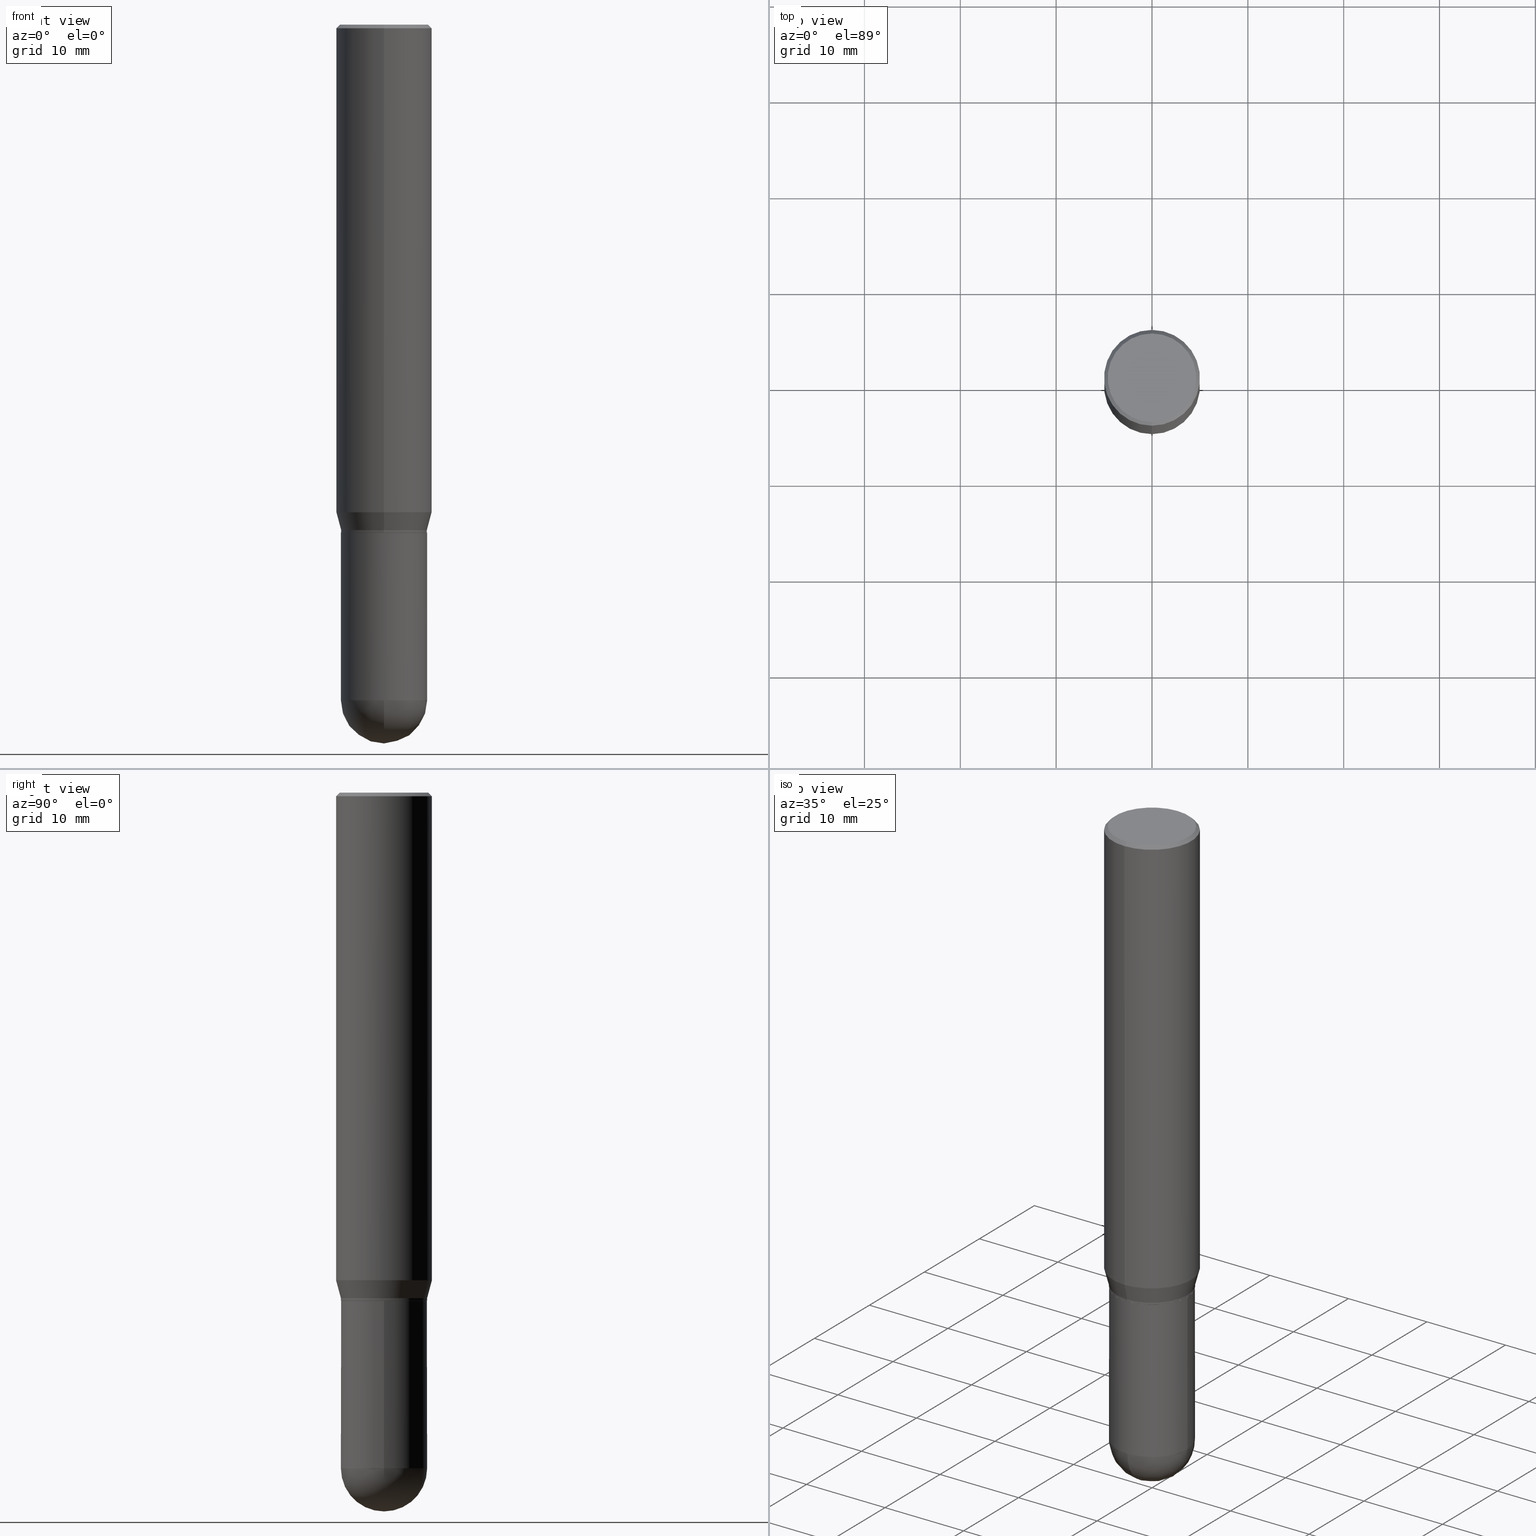
[diagram: canonical four-view strip — front | top / right | iso, engineering-drawing reading convention]
A machine part, canonical four-view strip (front | top / right | iso — engineering-drawing reading convention). The complete STEP part file that produces these views, byte-faithful:
ISO-10303-21;
HEADER;
FILE_DESCRIPTION (( 'STEP AP203' ),
    '1' );
FILE_NAME ('48598.STEP',
    '2024-03-08T13:08:48',
    ( '' ),
    ( '' ),
    'SwSTEP 2.0',
    'SolidWorks 2023',
    '' );
FILE_SCHEMA (( 'CONFIG_CONTROL_DESIGN' ));
ENDSEC;

DATA;
#1 = CARTESIAN_POINT ( 'NONE',  ( 0.000000000000000000, 0.000000000000000000, 0.000000000000000000 ) ) ;
#2 = DIRECTION ( 'NONE',  ( -6.982962677686265133E-15, -1.000000000000000000, 3.092949893760839854E-15 ) ) ;
#3 = CARTESIAN_POINT ( 'NONE',  ( 1.374596203102542003E-15, 0.1968499999999999417, -0.01500000000000151733 ) ) ;
#4 = LOCAL_TIME ( 8, 8, 48.00000000000000000, #450 ) ;
#5 = CARTESIAN_POINT ( 'NONE',  ( 6.813022828238686978E-29, -9.654960234947156736E-15, -2.775649999999999729 ) ) ;
#6 = DIRECTION ( 'NONE',  ( -6.982962677686265133E-15, -1.000000000000000000, 3.491137977679279424E-15 ) ) ;
#7 = ORIENTED_EDGE ( 'NONE', *, *, #134, .F. ) ;
#8 = FACE_OUTER_BOUND ( 'NONE', #474, .T. ) ;
#9 = VECTOR ( 'NONE', #320, 39.37007874015748854 ) ;
#10 = DATE_AND_TIME ( #129, #147 ) ;
#11 = APPROVAL ( #410, 'UNSPECIFIED' ) ;
#12 = AXIS2_PLACEMENT_3D ( 'NONE', #148, #66, #234 ) ;
#13 = ORIENTED_EDGE ( 'NONE', *, *, #47, .F. ) ;
#14 = PERSON_AND_ORGANIZATION_ROLE ( 'creator' ) ;
#15 = CARTESIAN_POINT ( 'NONE',  ( 1.328714915871437240E-15, 0.1771499999999927855, -2.076700000000000657 ) ) ;
#16 = ADVANCED_FACE ( 'NONE', ( #486 ), #204, .T. ) ;
#17 = PERSON_AND_ORGANIZATION ( #488, #88 ) ;
#18 = FACE_OUTER_BOUND ( 'NONE', #364, .T. ) ;
#19 = APPROVAL_DATE_TIME ( #217, #283 ) ;
#20 = CONICAL_SURFACE ( 'NONE', #412, 0.1771500000000000019, 0.2617993877991499074 ) ;
#21 = CONICAL_SURFACE ( 'NONE', #315, 0.1766500000000000847, 0.7853981633974824739 ) ;
#22 = ORIENTED_EDGE ( 'NONE', *, *, #201, .T. ) ;
#23 = VERTEX_POINT ( 'NONE', #445 ) ;
#24 = DIRECTION ( 'NONE',  ( -2.446062689571483486E-29, 3.490630864032153582E-15, 1.000000000000000000 ) ) ;
#25 = ORIENTED_EDGE ( 'NONE', *, *, #456, .T. ) ;
#26 = CIRCLE ( 'NONE', #118, 0.1968499999999999694 ) ;
#27 = DIRECTION ( 'NONE',  ( -2.445468806185136597E-29, 3.491481338843145583E-15, 1.000000000000000000 ) ) ;
#28 = CARTESIAN_POINT ( 'NONE',  ( 2.030115060229500884E-44, -2.897056693185172235E-30, -8.299521794288719114E-16 ) ) ;
#29 = CARTESIAN_POINT ( 'NONE',  ( 1.237031838352190236E-15, 0.1771499999999903430, -2.775650000000000173 ) ) ;
#30 = LINE ( 'NONE', #348, #247 ) ;
#31 = CC_DESIGN_PERSON_AND_ORGANIZATION_ASSIGNMENT ( #297, #14, ( #374 ) ) ;
#32 = DIRECTION ( 'NONE',  ( -2.446062689571483486E-29, 3.490630864032153582E-15, 1.000000000000000000 ) ) ;
#33 = CARTESIAN_POINT ( 'NONE',  ( 6.787765491887772680E-29, -9.691130178159974964E-15, -2.775649999999999729 ) ) ;
#34 = CARTESIAN_POINT ( 'NONE',  ( 1.398703375343805514E-15, 0.1968499999999929750, -2.003178599090894352 ) ) ;
#35 = LINE ( 'NONE', #349, #156 ) ;
#36 = ORIENTED_EDGE ( 'NONE', *, *, #328, .F. ) ;
#37 = CARTESIAN_POINT ( 'NONE',  ( 2.030115060229500884E-44, -2.897056693185172235E-30, -8.299521794288719114E-16 ) ) ;
#38 = EDGE_CURVE ( 'NONE', #58, #492, #188, .T. ) ;
#39 = CARTESIAN_POINT ( 'NONE',  ( 7.253812262660790316E-29, -1.026262884509977305E-14, -2.952799999999999869 ) ) ;
#40 = CC_DESIGN_DATE_AND_TIME_ASSIGNMENT ( #409, #379, ( #374 ) ) ;
#41 = ORIENTED_EDGE ( 'NONE', *, *, #115, .T. ) ;
#42 = VERTEX_POINT ( 'NONE', #393 ) ;
#43 = FACE_OUTER_BOUND ( 'NONE', #191, .T. ) ;
#44 = DIRECTION ( 'NONE',  ( -2.445468806185136877E-29, 3.491481338843145188E-15, 1.000000000000000000 ) ) ;
#45 = VECTOR ( 'NONE', #202, 39.37007874015748143 ) ;
#46 = CARTESIAN_POINT ( 'NONE',  ( 0.000000000000000000, 0.000000000000000000, 0.000000000000000000 ) ) ;
#47 = EDGE_CURVE ( 'NONE', #499, #91, #286, .T. ) ;
#48 = VERTEX_POINT ( 'NONE', #351 ) ;
#49 = ORIENTED_EDGE ( 'NONE', *, *, #401, .T. ) ;
#50 = CARTESIAN_POINT ( 'NONE',  ( 1.269851762937247450E-15, 0.1818500000000000116, -1.049747312338683111E-15 ) ) ;
#51 = AXIS2_PLACEMENT_3D ( 'NONE', #174, #416, #132 ) ;
#52 = CALENDAR_DATE ( 2024, 8, 3 ) ;
#53 = EDGE_CURVE ( 'NONE', #195, #58, #356, .T. ) ;
#54 = CIRCLE ( 'NONE', #199, 0.1771500000000000019 ) ;
#55 = CARTESIAN_POINT ( 'NONE',  ( 0.000000000000000000, 0.000000000000000000, 0.000000000000000000 ) ) ;
#56 = APPROVAL_ROLE ( '' ) ;
#57 = CIRCLE ( 'NONE', #509, 0.1771500000000000019 ) ;
#58 = VERTEX_POINT ( 'NONE', #159 ) ;
#59 = EDGE_CURVE ( 'NONE', #494, #48, #79, .T. ) ;
#60 = ORIENTED_EDGE ( 'NONE', *, *, #38, .F. ) ;
#61 = ORIENTED_EDGE ( 'NONE', *, *, #81, .F. ) ;
#62 = DIRECTION ( 'NONE',  ( -6.982962677686265922E-15, -1.000000000000000000, 3.084220145260246224E-15 ) ) ;
#63 = CARTESIAN_POINT ( 'NONE',  ( 3.669094034357428610E-31, -5.235946296048520279E-17, -0.01500000000000083038 ) ) ;
#64 = FACE_OUTER_BOUND ( 'NONE', #246, .T. ) ;
#65 = EDGE_LOOP ( 'NONE', ( #13, #457, #184, #259 ) ) ;
#66 = DIRECTION ( 'NONE',  ( -2.446062689571483206E-29, 3.490630864032153582E-15, 1.000000000000000000 ) ) ;
#67 = ORIENTED_EDGE ( 'NONE', *, *, #305, .T. ) ;
#68 = DIRECTION ( 'NONE',  ( 2.438088387897960049E-29, -3.491481338843145188E-15, -1.000000000000000000 ) ) ;
#69 = DIRECTION ( 'NONE',  ( 1.000000000000000000, -6.982962677686266711E-15, 4.876176775795934672E-29 ) ) ;
#70 = ORIENTED_EDGE ( 'NONE', *, *, #345, .F. ) ;
#71 = DIRECTION ( 'NONE',  ( -6.982962677686265922E-15, -1.000000000000000000, 3.490630864032153582E-15 ) ) ;
#72 = AXIS2_PLACEMENT_3D ( 'NONE', #424, #144, #62 ) ;
#73 = PRODUCT_DEFINITION_FORMATION_WITH_SPECIFIED_SOURCE ( 'ANY', '', #155, .NOT_KNOWN. ) ;
#74 = DIMENSIONAL_EXPONENTS ( 1.000000000000000000, 0.000000000000000000, 0.000000000000000000, 0.000000000000000000, 0.000000000000000000, 0.000000000000000000, 0.000000000000000000 ) ;
#75 = DIRECTION ( 'NONE',  ( 6.982962677686265133E-15, 1.000000000000000000, -3.084220145260245435E-15 ) ) ;
#76 = DIRECTION ( 'NONE',  ( -6.982962677686265133E-15, -1.000000000000000000, 3.092949893760839854E-15 ) ) ;
#77 = AXIS2_PLACEMENT_3D ( 'NONE', #426, #307, #265 ) ;
#78 = CARTESIAN_POINT ( 'NONE',  ( 5.102959757866523939E-29, -7.285674109763990928E-15, -2.086699999999999999 ) ) ;
#79 = LINE ( 'NONE', #3, #149 ) ;
#80 = ORIENTED_EDGE ( 'NONE', *, *, #471, .T. ) ;
#81 = EDGE_CURVE ( 'NONE', #192, #492, #154, .T. ) ;
#82 = ORIENTED_EDGE ( 'NONE', *, *, #81, .T. ) ;
#83 = EDGE_LOOP ( 'NONE', ( #25, #108, #92, #182 ) ) ;
#84 = LOCAL_TIME ( 8, 8, 48.00000000000000000, #414 ) ;
#85 = AXIS2_PLACEMENT_3D ( 'NONE', #353, #387, #319 ) ;
#86 = CARTESIAN_POINT ( 'NONE',  ( 0.000000000000000000, 0.000000000000000000, 0.000000000000000000 ) ) ;
#87 = COORDINATED_UNIVERSAL_TIME_OFFSET ( 5, 0, .BEHIND. ) ;
#88 = ORGANIZATION ( 'UNSPECIFIED', 'UNSPECIFIED', '' ) ;
#89 = LENGTH_MEASURE_WITH_UNIT ( LENGTH_MEASURE( 0.02539999999999999897 ), #122 );
#90 = CARTESIAN_POINT ( 'NONE',  ( 0.000000000000000000, 0.000000000000000000, 0.000000000000000000 ) ) ;
#91 = VERTEX_POINT ( 'NONE', #15 ) ;
#92 = ORIENTED_EDGE ( 'NONE', *, *, #100, .F. ) ;
#93 = PERSON_AND_ORGANIZATION ( #488, #88 ) ;
#94 = APPROVAL_ROLE ( '' ) ;
#95 = ADVANCED_FACE ( 'NONE', ( #18 ), #173, .T. ) ;
#96 = VECTOR ( 'NONE', #245, 39.37007874015748143 ) ;
#97 = AXIS2_PLACEMENT_3D ( 'NONE', #50, #298, #451 ) ;
#98 = CARTESIAN_POINT ( 'NONE',  ( 0.1771500000000000574, -9.725433982314104551E-15, -2.775649999999999729 ) ) ;
#99 = ORIENTED_EDGE ( 'NONE', *, *, #249, .T. ) ;
#100 = EDGE_CURVE ( 'NONE', #111, #48, #372, .T. ) ;
#101 = CARTESIAN_POINT ( 'NONE',  ( 1.322223983019894726E-15, 0.1818500000000000116, -1.464723402053119215E-15 ) ) ;
#102 = CARTESIAN_POINT ( 'NONE',  ( 5.104199014328814533E-29, -7.283899423975895246E-15, -2.086699999999999999 ) ) ;
#103 = CARTESIAN_POINT ( 'NONE',  ( 5.102975982984029153E-29, -7.282154108543879777E-15, -2.086199999999999832 ) ) ;
#104 = ORIENTED_EDGE ( 'NONE', *, *, #233, .F. ) ;
#105 = LOCAL_TIME ( 8, 8, 48.00000000000000000, #87 ) ;
#106 = CARTESIAN_POINT ( 'NONE',  ( 4.899900431784307607E-29, -6.992357044155365474E-15, -2.003178599090893464 ) ) ;
#107 = FACE_OUTER_BOUND ( 'NONE', #487, .T. ) ;
#108 = ORIENTED_EDGE ( 'NONE', *, *, #214, .T. ) ;
#109 = EDGE_LOOP ( 'NONE', ( #7, #67, #289, #288 ) ) ;
#110 = CARTESIAN_POINT ( 'NONE',  ( 6.787765491887772680E-29, -9.691130178159974964E-15, -2.775649999999999729 ) ) ;
#111 = VERTEX_POINT ( 'NONE', #301 ) ;
#112 = ORIENTED_EDGE ( 'NONE', *, *, #305, .F. ) ;
#113 = CARTESIAN_POINT ( 'NONE',  ( 5.079738387433100219E-29, -7.248993115335574834E-15, -2.076700000000000212 ) ) ;
#114 = CARTESIAN_POINT ( 'NONE',  ( 6.813022828238686978E-29, -9.654960234947156736E-15, -2.775649999999999729 ) ) ;
#115 = EDGE_CURVE ( 'NONE', #318, #284, #342, .T. ) ;
#116 = LINE ( 'NONE', #278, #96 ) ;
#117 = DIRECTION ( 'NONE',  ( -6.982962677686265922E-15, -1.000000000000000000, 3.084220145260246224E-15 ) ) ;
#118 = AXIS2_PLACEMENT_3D ( 'NONE', #415, #388, #358 ) ;
#119 = PRODUCT_RELATED_PRODUCT_CATEGORY ( 'detail', '', ( #155 ) ) ;
#120 = CC_DESIGN_APPROVAL ( #459, ( #73 ) ) ;
#121 = ORIENTED_EDGE ( 'NONE', *, *, #203, .F. ) ;
#122 =( LENGTH_UNIT ( ) NAMED_UNIT ( * ) SI_UNIT ( $, .METRE. ) );
#123 = ADVANCED_FACE ( 'NONE', ( #330 ), #453, .T. ) ;
#124 = ORIENTED_EDGE ( 'NONE', *, *, #485, .F. ) ;
#125 = CC_DESIGN_PERSON_AND_ORGANIZATION_ASSIGNMENT ( #126, #334, ( #155 ) ) ;
#126 = PERSON_AND_ORGANIZATION ( #488, #88 ) ;
#127 = AXIS2_PLACEMENT_3D ( 'NONE', #432, #68, #321 ) ;
#128 = ADVANCED_FACE ( 'NONE', ( #468 ), #472, .F. ) ;
#129 = CALENDAR_DATE ( 2024, 8, 3 ) ;
#130 = CONICAL_SURFACE ( 'NONE', #229, 0.1766500000000000847, 0.7853981633974824739 ) ;
#131 = APPROVAL_DATE_TIME ( #294, #459 ) ;
#132 = DIRECTION ( 'NONE',  ( 6.982962677686265133E-15, 1.000000000000000000, -3.491137977679279424E-15 ) ) ;
#133 = COORDINATED_UNIVERSAL_TIME_OFFSET ( 5, 0, .BEHIND. ) ;
#134 = EDGE_CURVE ( 'NONE', #465, #494, #489, .T. ) ;
#135 = ORIENTED_EDGE ( 'NONE', *, *, #471, .F. ) ;
#136 = VERTEX_POINT ( 'NONE', #189 ) ;
#137 = AXIS2_PLACEMENT_3D ( 'NONE', #114, #440, #277 ) ;
#138 = AXIS2_PLACEMENT_3D ( 'NONE', #5, #177, #167 ) ;
#139 = ORIENTED_EDGE ( 'NONE', *, *, #333, .F. ) ;
#140 = CARTESIAN_POINT ( 'NONE',  ( -0.1771500000000000852, -7.229675687562965256E-15, -2.086699999999999999 ) ) ;
#141 = DIRECTION ( 'NONE',  ( -6.982962677686265922E-15, -1.000000000000000000, 3.084220145260246224E-15 ) ) ;
#142 = ORIENTED_EDGE ( 'NONE', *, *, #134, .T. ) ;
#143 = DIRECTION ( 'NONE',  ( -6.982962677686265922E-15, -1.000000000000000000, 3.084220145260246224E-15 ) ) ;
#144 = DIRECTION ( 'NONE',  ( -2.446062689571483486E-29, 3.490630864032153582E-15, 1.000000000000000000 ) ) ;
#145 = DIRECTION ( 'NONE',  ( -6.982962677686265133E-15, -1.000000000000000000, 3.491137977679279424E-15 ) ) ;
#146 = CYLINDRICAL_SURFACE ( 'NONE', #262, 0.1771500000000000019 ) ;
#147 = LOCAL_TIME ( 8, 8, 48.00000000000000000, #133 ) ;
#148 = CARTESIAN_POINT ( 'NONE',  ( 5.104199014328814533E-29, -7.283899423975895246E-15, -2.086699999999999999 ) ) ;
#149 = VECTOR ( 'NONE', #243, 39.37007874015748143 ) ;
#150 = DIRECTION ( 'NONE',  ( 5.024295867788231995E-15, 0.7071067811865739960, 0.7071067811865208164 ) ) ;
#151 = DIRECTION ( 'NONE',  ( -2.446062689571483486E-29, 3.490630864032153582E-15, 1.000000000000000000 ) ) ;
#152 = DIRECTION ( 'NONE',  ( -2.446062689571483486E-29, 3.490630864032153582E-15, 1.000000000000000000 ) ) ;
#153 = DIRECTION ( 'NONE',  ( -6.982962677686265922E-15, -1.000000000000000000, 3.490630864032153582E-15 ) ) ;
#154 = LINE ( 'NONE', #400, #309 ) ;
#155 = PRODUCT ( '48598', '48598', '', ( #458 ) ) ;
#156 = VECTOR ( 'NONE', #198, 39.37007874015748854 ) ;
#157 = LINE ( 'NONE', #478, #9 ) ;
#158 = ADVANCED_FACE ( 'NONE', ( #236 ), #382, .T. ) ;
#159 = CARTESIAN_POINT ( 'NONE',  ( 0.1771500000000000852, -8.522705948116114900E-15, -2.086699999999999999 ) ) ;
#160 = FACE_OUTER_BOUND ( 'NONE', #109, .T. ) ;
#161 = DIRECTION ( 'NONE',  ( 1.000000000000000000, -6.982962677686269077E-15, 0.000000000000000000 ) ) ;
#162 = EDGE_CURVE ( 'NONE', #136, #499, #389, .T. ) ;
#163 = APPLICATION_CONTEXT ( 'configuration controlled 3d designs of mechanical parts and assemblies' ) ;
#164 = ADVANCED_BREP_SHAPE_REPRESENTATION ( '48598', ( #224, #398, #338 ), #221 ) ;
#165 = DIRECTION ( 'NONE',  ( -2.446062689571483486E-29, 3.490630864032153582E-15, 1.000000000000000000 ) ) ;
#166 = SPHERICAL_SURFACE ( 'NONE', #369, 0.1771500000000000574 ) ;
#167 = DIRECTION ( 'NONE',  ( 6.982962677686264344E-15, 1.000000000000000000, 0.000000000000000000 ) ) ;
#168 = AXIS2_PLACEMENT_3D ( 'NONE', #37, #152, #477 ) ;
#169 = CLOSED_SHELL ( 'NONE', ( #322, #418, #384, #220, #158, #449, #123, #340, #461, #444, #241, #16 ) ) ;
#170 = PERSON_AND_ORGANIZATION ( #488, #88 ) ;
#171 = ORIENTED_EDGE ( 'NONE', *, *, #185, .F. ) ;
#172 =( NAMED_UNIT ( * ) PLANE_ANGLE_UNIT ( ) SI_UNIT ( $, .RADIAN. ) );
#173 = CYLINDRICAL_SURFACE ( 'NONE', #190, 0.1771500000000000574 ) ;
#174 = CARTESIAN_POINT ( 'NONE',  ( 3.669094034357428610E-31, -5.235946296048520279E-17, -0.01500000000000083038 ) ) ;
#175 = APPROVAL_ROLE ( '' ) ;
#176 = DIRECTION ( 'NONE',  ( -2.446062689571483486E-29, 3.490630864032153582E-15, 1.000000000000000000 ) ) ;
#177 = DIRECTION ( 'NONE',  ( 1.000000000000000000, -6.982962677686265922E-15, 4.883557194083112340E-29 ) ) ;
#178 = APPROVAL_STATUS ( 'not_yet_approved' ) ;
#179 = PRODUCT_DEFINITION_SHAPE ( 'NONE', 'NONE',  #374 ) ;
#180 = VECTOR ( 'NONE', #150, 39.37007874015748854 ) ;
#181 = VERTEX_POINT ( 'NONE', #34 ) ;
#182 = ORIENTED_EDGE ( 'NONE', *, *, #381, .F. ) ;
#183 =( NAMED_UNIT ( * ) SI_UNIT ( $, .STERADIAN. ) SOLID_ANGLE_UNIT ( ) );
#184 = ORIENTED_EDGE ( 'NONE', *, *, #185, .T. ) ;
#185 = EDGE_CURVE ( 'NONE', #481, #226, #344, .T. ) ;
#186 = APPROVAL_PERSON_ORGANIZATION ( #170, #459, #94 ) ;
#187 = DIRECTION ( 'NONE',  ( 1.000000000000000000, -6.982962677686270655E-15, 0.000000000000000000 ) ) ;
#188 = CIRCLE ( 'NONE', #484, 0.1771500000000000852 ) ;
#189 = CARTESIAN_POINT ( 'NONE',  ( 1.256950099559668320E-15, 0.1766499999999928128, -2.086700000000000443 ) ) ;
#190 = AXIS2_PLACEMENT_3D ( 'NONE', #86, #335, #290 ) ;
#191 = EDGE_LOOP ( 'NONE', ( #22, #227, #139, #341 ) ) ;
#192 = VERTEX_POINT ( 'NONE', #310 ) ;
#193 = DIRECTION ( 'NONE',  ( -6.982962677686265133E-15, -1.000000000000000000, 3.092949893760839854E-15 ) ) ;
#194 = EDGE_CURVE ( 'NONE', #23, #195, #215, .T. ) ;
#195 = VERTEX_POINT ( 'NONE', #98 ) ;
#196 = DIRECTION ( 'NONE',  ( -2.446062689571483486E-29, 3.490630864032153582E-15, 1.000000000000000000 ) ) ;
#197 = DIRECTION ( 'NONE',  ( -2.446062689571483486E-29, 3.490630864032153582E-15, 1.000000000000000000 ) ) ;
#198 = DIRECTION ( 'NONE',  ( -4.937700262164715281E-15, -0.7071067811865691111, 0.7071067811865257013 ) ) ;
#199 = AXIS2_PLACEMENT_3D ( 'NONE', #476, #235, #117 ) ;
#200 = SPHERICAL_SURFACE ( 'NONE', #447, 0.1771500000000000574 ) ;
#201 = EDGE_CURVE ( 'NONE', #42, #136, #438, .T. ) ;
#202 = DIRECTION ( 'NONE',  ( -2.445468806185136877E-29, 3.491481338843145188E-15, 1.000000000000000000 ) ) ;
#203 = EDGE_CURVE ( 'NONE', #181, #208, #422, .T. ) ;
#204 = CYLINDRICAL_SURFACE ( 'NONE', #268, 0.1771500000000000019 ) ;
#205 = CYLINDRICAL_SURFACE ( 'NONE', #497, 0.1968499999999999694 ) ;
#206 = CIRCLE ( 'NONE', #168, 0.1818500000000000116 ) ;
#207 = VECTOR ( 'NONE', #196, 39.37007874015748143 ) ;
#208 = VERTEX_POINT ( 'NONE', #431 ) ;
#209 = DIRECTION ( 'NONE',  ( -2.445468806185136597E-29, 3.491481338843145583E-15, 1.000000000000000000 ) ) ;
#210 = EDGE_LOOP ( 'NONE', ( #391, #41, #430, #252 ) ) ;
#211 = ORIENTED_EDGE ( 'NONE', *, *, #401, .F. ) ;
#212 = DIRECTION ( 'NONE',  ( -1.000000000000000000, 6.982962677686265133E-15, -4.883557194083112340E-29 ) ) ;
#213 = FACE_OUTER_BOUND ( 'NONE', #306, .T. ) ;
#214 = EDGE_CURVE ( 'NONE', #181, #48, #30, .T. ) ;
#215 = CIRCLE ( 'NONE', #85, 0.1771500000000000574 ) ;
#216 = EDGE_LOOP ( 'NONE', ( #421, #82, #60, #317, #375 ) ) ;
#217 = DATE_AND_TIME ( #455, #4 ) ;
#218 = AXIS2_PLACEMENT_3D ( 'NONE', #113, #507, #143 ) ;
#219 = CALENDAR_DATE ( 2024, 8, 3 ) ;
#220 = ADVANCED_FACE ( 'NONE', ( #244 ), #205, .T. ) ;
#221 =( GEOMETRIC_REPRESENTATION_CONTEXT ( 3 ) GLOBAL_UNCERTAINTY_ASSIGNED_CONTEXT ( ( #506 ) ) GLOBAL_UNIT_ASSIGNED_CONTEXT ( ( #373, #172, #183 ) ) REPRESENTATION_CONTEXT ( 'NONE', 'WORKASPACE' ) );
#222 = APPLICATION_PROTOCOL_DEFINITION ( 'international standard', 'config_control_design', 1994, #163 ) ;
#223 = VECTOR ( 'NONE', #396, 39.37007874015748143 ) ;
#224 = MANIFOLD_SOLID_BREP ( 'Body-Move/Copy2[1]', #429 ) ;
#225 = SHAPE_DEFINITION_REPRESENTATION ( #179, #164 ) ;
#226 = VERTEX_POINT ( 'NONE', #327 ) ;
#227 = ORIENTED_EDGE ( 'NONE', *, *, #162, .T. ) ;
#228 = CARTESIAN_POINT ( 'NONE',  ( 1.255173742720268265E-15, 0.1766499999999928128, -2.086700000000000443 ) ) ;
#229 = AXIS2_PLACEMENT_3D ( 'NONE', #326, #32, #76 ) ;
#230 = CARTESIAN_POINT ( 'NONE',  ( 1.258726456399067783E-15, 0.1771499999999926744, -2.086200000000000720 ) ) ;
#231 = ORIENTED_EDGE ( 'NONE', *, *, #38, .T. ) ;
#232 = FACE_OUTER_BOUND ( 'NONE', #363, .T. ) ;
#233 = EDGE_CURVE ( 'NONE', #499, #481, #394, .T. ) ;
#234 = DIRECTION ( 'NONE',  ( -6.982962677686265922E-15, -1.000000000000000000, 3.490630864032153582E-15 ) ) ;
#235 = DIRECTION ( 'NONE',  ( -2.446062689571483486E-29, 3.490630864032153582E-15, 1.000000000000000000 ) ) ;
#236 = FACE_OUTER_BOUND ( 'NONE', #276, .T. ) ;
#237 = ORIENTED_EDGE ( 'NONE', *, *, #203, .T. ) ;
#238 = CARTESIAN_POINT ( 'NONE',  ( 5.104199014328814533E-29, -7.283899423975895246E-15, -2.086699999999999999 ) ) ;
#239 = AXIS2_PLACEMENT_3D ( 'NONE', #357, #27, #502 ) ;
#240 = CARTESIAN_POINT ( 'NONE',  ( 6.813022828238686978E-29, -9.654960234947156736E-15, -2.775649999999999729 ) ) ;
#241 = ADVANCED_FACE ( 'NONE', ( #64 ), #21, .T. ) ;
#242 = ORIENTED_EDGE ( 'NONE', *, *, #456, .F. ) ;
#243 = DIRECTION ( 'NONE',  ( 4.937700262164548831E-15, 0.7071067811865452413, -0.7071067811865497932 ) ) ;
#244 = FACE_OUTER_BOUND ( 'NONE', #83, .T. ) ;
#245 = DIRECTION ( 'NONE',  ( -2.446062689571483486E-29, 3.490630864032153582E-15, 1.000000000000000000 ) ) ;
#246 = EDGE_LOOP ( 'NONE', ( #405, #49, #365, #104 ) ) ;
#247 = VECTOR ( 'NONE', #325, 39.37007874015748143 ) ;
#248 = CARTESIAN_POINT ( 'NONE',  ( 3.669094034357428610E-31, -5.235946296048520279E-17, -0.01500000000000083038 ) ) ;
#249 = EDGE_CURVE ( 'NONE', #91, #226, #54, .T. ) ;
#250 = DIRECTION ( 'NONE',  ( -2.446062689571483486E-29, 3.490630864032153582E-15, 1.000000000000000000 ) ) ;
#251 = DIRECTION ( 'NONE',  ( 1.000000000000000000, -6.982962677686270655E-15, 0.000000000000000000 ) ) ;
#252 = ORIENTED_EDGE ( 'NONE', *, *, #194, .F. ) ;
#253 = DATE_TIME_ROLE ( 'classification_date' ) ;
#254 = CIRCLE ( 'NONE', #380, 0.1771500000000000574 ) ;
#255 = DIRECTION ( 'NONE',  ( 1.000000000000000000, 0.000000000000000000, 0.000000000000000000 ) ) ;
#256 = ADVANCED_FACE ( 'NONE', ( #428 ), #200, .T. ) ;
#257 = DIRECTION ( 'NONE',  ( -2.446062689571483486E-29, 3.490630864032153582E-15, 1.000000000000000000 ) ) ;
#258 = DATE_AND_TIME ( #303, #469 ) ;
#259 = ORIENTED_EDGE ( 'NONE', *, *, #249, .F. ) ;
#260 = APPROVAL_DATE_TIME ( #258, #11 ) ;
#261 = CIRCLE ( 'NONE', #500, 0.1968500000000000250 ) ;
#262 = AXIS2_PLACEMENT_3D ( 'NONE', #466, #151, #272 ) ;
#263 = EDGE_CURVE ( 'NONE', #226, #208, #316, .T. ) ;
#264 = DIRECTION ( 'NONE',  ( -2.446062689571483486E-29, 3.490630864032153582E-15, 1.000000000000000000 ) ) ;
#265 = DIRECTION ( 'NONE',  ( 6.982962677686265133E-15, 1.000000000000000000, -3.491137977679279424E-15 ) ) ;
#266 = DIRECTION ( 'NONE',  ( -2.446062689571483486E-29, 3.490630864032153582E-15, 1.000000000000000000 ) ) ;
#267 = EDGE_LOOP ( 'NONE', ( #231, #80 ) ) ;
#268 = AXIS2_PLACEMENT_3D ( 'NONE', #442, #434, #71 ) ;
#269 = DIRECTION ( 'NONE',  ( -2.446062689571483486E-29, 3.490630864032153582E-15, 1.000000000000000000 ) ) ;
#270 = PLANE ( 'NONE',  #12 ) ;
#271 = FACE_OUTER_BOUND ( 'NONE', #216, .T. ) ;
#272 = DIRECTION ( 'NONE',  ( -6.982962677686265922E-15, -1.000000000000000000, 3.490630864032153582E-15 ) ) ;
#273 = CC_DESIGN_PERSON_AND_ORGANIZATION_ASSIGNMENT ( #495, #493, ( #73 ) ) ;
#274 = CARTESIAN_POINT ( 'NONE',  ( 1.258726456399017296E-15, 0.1771500000000000019, -6.183652575632960237E-16 ) ) ;
#275 = DIRECTION ( 'NONE',  ( -2.445468806185136597E-29, 3.491481338843145583E-15, 1.000000000000000000 ) ) ;
#276 = EDGE_LOOP ( 'NONE', ( #308, #483, #242, #378 ) ) ;
#277 = DIRECTION ( 'NONE',  ( -7.105427357600999492E-15, -1.000000000000000000, 0.000000000000000000 ) ) ;
#278 = CARTESIAN_POINT ( 'NONE',  ( -1.374596203102541214E-15, -0.1968499999999999694, 6.871306855847293015E-16 ) ) ;
#279 = ORIENTED_EDGE ( 'NONE', *, *, #47, .T. ) ;
#280 = CIRCLE ( 'NONE', #239, 0.1771500000000000574 ) ;
#281 = CIRCLE ( 'NONE', #498, 0.1771500000000000852 ) ;
#282 = AXIS2_PLACEMENT_3D ( 'NONE', #106, #269, #346 ) ;
#283 = APPROVAL ( #383, 'UNSPECIFIED' ) ;
#284 = VERTEX_POINT ( 'NONE', #29 ) ;
#285 = ORIENTED_EDGE ( 'NONE', *, *, #403, .F. ) ;
#286 = LINE ( 'NONE', #274, #207 ) ;
#287 = ORIENTED_EDGE ( 'NONE', *, *, #59, .T. ) ;
#288 = ORIENTED_EDGE ( 'NONE', *, *, #59, .F. ) ;
#289 = ORIENTED_EDGE ( 'NONE', *, *, #100, .T. ) ;
#290 = DIRECTION ( 'NONE',  ( 1.000000000000000000, -6.982962677686266711E-15, 4.876176775795934672E-29 ) ) ;
#291 = EDGE_CURVE ( 'NONE', #226, #91, #331, .T. ) ;
#292 = CC_DESIGN_APPROVAL ( #283, ( #374 ) ) ;
#293 = AXIS2_PLACEMENT_3D ( 'NONE', #1, #275, #69 ) ;
#294 = DATE_AND_TIME ( #52, #105 ) ;
#295 = PLANE ( 'NONE',  #97 ) ;
#296 = ORIENTED_EDGE ( 'NONE', *, *, #115, .F. ) ;
#297 = PERSON_AND_ORGANIZATION ( #488, #88 ) ;
#298 = DIRECTION ( 'NONE',  ( 2.446062689571483206E-29, -3.490630864032153582E-15, -1.000000000000000000 ) ) ;
#299 = ORIENTED_EDGE ( 'NONE', *, *, #53, .T. ) ;
#300 = COORDINATED_UNIVERSAL_TIME_OFFSET ( 5, 0, .BEHIND. ) ;
#301 = CARTESIAN_POINT ( 'NONE',  ( -1.374596203102541017E-15, -0.1968500000000000805, -0.01500000000000014343 ) ) ;
#302 = ORIENTED_EDGE ( 'NONE', *, *, #291, .F. ) ;
#303 = CALENDAR_DATE ( 2024, 8, 3 ) ;
#304 = PERSON_AND_ORGANIZATION_ROLE ( 'classification_officer' ) ;
#305 = EDGE_CURVE ( 'NONE', #465, #111, #354, .T. ) ;
#306 = EDGE_LOOP ( 'NONE', ( #337, #142 ) ) ;
#307 = DIRECTION ( 'NONE',  ( 2.446062689571483486E-29, -3.490630864032153582E-15, -1.000000000000000000 ) ) ;
#308 = ORIENTED_EDGE ( 'NONE', *, *, #291, .T. ) ;
#309 = VECTOR ( 'NONE', #44, 39.37007874015748143 ) ;
#310 = CARTESIAN_POINT ( 'NONE',  ( -0.1771500000000000574, -7.229675687562965256E-15, -2.775649999999999729 ) ) ;
#311 = FACE_OUTER_BOUND ( 'NONE', #371, .T. ) ;
#312 = DIRECTION ( 'NONE',  ( -4.851104656540965064E-15, -0.7071067811865501263, -0.7071067811865449082 ) ) ;
#313 = CARTESIAN_POINT ( 'NONE',  ( -1.237031838352121999E-15, -0.1771500000000000019, 6.183652575632960237E-16 ) ) ;
#314 = DESIGN_CONTEXT ( 'detailed design', #443, 'design' ) ;
#315 = AXIS2_PLACEMENT_3D ( 'NONE', #238, #266, #439 ) ;
#316 = LINE ( 'NONE', #503, #223 ) ;
#317 = ORIENTED_EDGE ( 'NONE', *, *, #53, .F. ) ;
#318 = VERTEX_POINT ( 'NONE', #39 ) ;
#319 = DIRECTION ( 'NONE',  ( 1.000000000000000000, -6.982962677686270655E-15, 0.000000000000000000 ) ) ;
#320 = DIRECTION ( 'NONE',  ( 1.839019923739597554E-15, 0.2588190451025245697, 0.9659258262890670910 ) ) ;
#321 = DIRECTION ( 'NONE',  ( -1.000000000000000000, 6.982962677686265922E-15, -4.876176775795935793E-29 ) ) ;
#322 = ADVANCED_FACE ( 'NONE', ( #232 ), #146, .T. ) ;
#323 = ORIENTED_EDGE ( 'NONE', *, *, #201, .F. ) ;
#324 = CIRCLE ( 'NONE', #411, 0.1771500000000000574 ) ;
#325 = DIRECTION ( 'NONE',  ( -2.446062689571483486E-29, 3.490630864032153582E-15, 1.000000000000000000 ) ) ;
#326 = CARTESIAN_POINT ( 'NONE',  ( 5.104199014328814533E-29, -7.283899423975895246E-15, -2.086699999999999999 ) ) ;
#327 = CARTESIAN_POINT ( 'NONE',  ( -1.237031838352071315E-15, -0.1771500000000072461, -2.076699999999999768 ) ) ;
#328 = EDGE_CURVE ( 'NONE', #192, #23, #280, .T. ) ;
#329 = ORIENTED_EDGE ( 'NONE', *, *, #328, .T. ) ;
#330 = FACE_OUTER_BOUND ( 'NONE', #406, .T. ) ;
#331 = CIRCLE ( 'NONE', #218, 0.1771500000000000019 ) ;
#332 = CONICAL_SURFACE ( 'NONE', #77, 0.1968500000000000250, 0.7853981633974485010 ) ;
#333 = EDGE_CURVE ( 'NONE', #481, #499, #57, .T. ) ;
#334 = PERSON_AND_ORGANIZATION_ROLE ( 'design_owner' ) ;
#335 = DIRECTION ( 'NONE',  ( -2.445468806185136597E-29, 3.491481338843145583E-15, 1.000000000000000000 ) ) ;
#336 = APPLICATION_PROTOCOL_DEFINITION ( 'international standard', 'config_control_design', 1994, #443 ) ;
#337 = ORIENTED_EDGE ( 'NONE', *, *, #403, .T. ) ;
#338 = AXIS2_PLACEMENT_3D ( 'NONE', #55, #448, #255 ) ;
#339 = VECTOR ( 'NONE', #197, 39.37007874015748143 ) ;
#340 = ADVANCED_FACE ( 'NONE', ( #311 ), #332, .T. ) ;
#341 = ORIENTED_EDGE ( 'NONE', *, *, #441, .F. ) ;
#342 = CIRCLE ( 'NONE', #138, 0.1771500000000000574 ) ;
#343 = AXIS2_PLACEMENT_3D ( 'NONE', #370, #250, #2 ) ;
#344 = LINE ( 'NONE', #313, #339 ) ;
#345 = EDGE_CURVE ( 'NONE', #48, #111, #261, .T. ) ;
#346 = DIRECTION ( 'NONE',  ( -6.982962677686265922E-15, -1.000000000000000000, 4.163344669033675634E-15 ) ) ;
#347 = DIRECTION ( 'NONE',  ( -2.446062689571483486E-29, 3.490630864032153582E-15, 1.000000000000000000 ) ) ;
#348 = CARTESIAN_POINT ( 'NONE',  ( 1.398703375343756802E-15, 0.1968499999999999694, -6.871306855847293015E-16 ) ) ;
#349 = CARTESIAN_POINT ( 'NONE',  ( -1.233540357013228308E-15, -0.1766500000000073567, -2.086699999999999555 ) ) ;
#350 = ORIENTED_EDGE ( 'NONE', *, *, #194, .T. ) ;
#351 = CARTESIAN_POINT ( 'NONE',  ( 1.398703375343806303E-15, 0.1968499999999999139, -0.01500000000000151733 ) ) ;
#352 = AXIS2_PLACEMENT_3D ( 'NONE', #446, #165, #475 ) ;
#353 = CARTESIAN_POINT ( 'NONE',  ( 6.787765491887772680E-29, -9.691130178159974964E-15, -2.775649999999999729 ) ) ;
#354 = LINE ( 'NONE', #511, #463 ) ;
#355 = ADVANCED_FACE ( 'NONE', ( #271 ), #462, .T. ) ;
#356 = LINE ( 'NONE', #399, #45 ) ;
#357 = CARTESIAN_POINT ( 'NONE',  ( 6.787765491887772680E-29, -9.691130178159974964E-15, -2.775649999999999729 ) ) ;
#358 = DIRECTION ( 'NONE',  ( -6.982962677686265922E-15, -1.000000000000000000, 4.163344669033675634E-15 ) ) ;
#359 = DIRECTION ( 'NONE',  ( -6.982962677686265922E-15, -1.000000000000000000, 3.490630864032153582E-15 ) ) ;
#360 = CARTESIAN_POINT ( 'NONE',  ( 5.102959757866523939E-29, -7.285674109763990928E-15, -2.086699999999999999 ) ) ;
#361 = EDGE_CURVE ( 'NONE', #91, #181, #157, .T. ) ;
#362 = CC_DESIGN_PERSON_AND_ORGANIZATION_ASSIGNMENT ( #93, #377, ( #73 ) ) ;
#363 = EDGE_LOOP ( 'NONE', ( #467, #279, #302, #171 ) ) ;
#364 = EDGE_LOOP ( 'NONE', ( #61, #329, #350, #299, #135 ) ) ;
#365 = ORIENTED_EDGE ( 'NONE', *, *, #441, .T. ) ;
#366 = DIRECTION ( 'NONE',  ( 6.982962677686265133E-15, 1.000000000000000000, -3.084220145260245435E-15 ) ) ;
#367 = CARTESIAN_POINT ( 'NONE',  ( -1.237031838352071512E-15, -0.1771500000000073571, -2.086199999999999388 ) ) ;
#368 = PERSON_AND_ORGANIZATION ( #488, #88 ) ;
#369 = AXIS2_PLACEMENT_3D ( 'NONE', #408, #212, #366 ) ;
#370 = CARTESIAN_POINT ( 'NONE',  ( 5.104199014328814533E-29, -7.283899423975895246E-15, -2.086699999999999999 ) ) ;
#371 = EDGE_LOOP ( 'NONE', ( #112, #285, #287, #433 ) ) ;
#372 = CIRCLE ( 'NONE', #404, 0.1968500000000000250 ) ;
#373 =( CONVERSION_BASED_UNIT ( 'INCH', #89 ) LENGTH_UNIT ( ) NAMED_UNIT ( #74 ) );
#374 = PRODUCT_DEFINITION ( 'UNKNOWN', '', #73, #314 ) ;
#375 = ORIENTED_EDGE ( 'NONE', *, *, #480, .T. ) ;
#376 = CARTESIAN_POINT ( 'NONE',  ( 5.079738387433100219E-29, -7.248993115335574834E-15, -2.076700000000000212 ) ) ;
#377 = PERSON_AND_ORGANIZATION_ROLE ( 'creator' ) ;
#378 = ORIENTED_EDGE ( 'NONE', *, *, #263, .F. ) ;
#379 = DATE_TIME_ROLE ( 'creation_date' ) ;
#380 = AXIS2_PLACEMENT_3D ( 'NONE', #110, #496, #251 ) ;
#381 = EDGE_CURVE ( 'NONE', #208, #111, #116, .T. ) ;
#382 = CONICAL_SURFACE ( 'NONE', #72, 0.1771500000000000019, 0.2617993877991499074 ) ;
#383 = APPROVAL_STATUS ( 'not_yet_approved' ) ;
#384 = ADVANCED_FACE ( 'NONE', ( #160 ), #437, .T. ) ;
#385 = APPROVAL_PERSON_ORGANIZATION ( #417, #283, #56 ) ;
#386 = DIRECTION ( 'NONE',  ( -1.000000000000000000, 6.982962677686265133E-15, -4.883557194083112340E-29 ) ) ;
#387 = DIRECTION ( 'NONE',  ( -2.445468806185136597E-29, 3.491481338843145583E-15, 1.000000000000000000 ) ) ;
#388 = DIRECTION ( 'NONE',  ( -2.446062689571483486E-29, 3.490630864032153582E-15, 1.000000000000000000 ) ) ;
#389 = LINE ( 'NONE', #228, #180 ) ;
#390 = ADVANCED_FACE ( 'NONE', ( #8 ), #166, .T. ) ;
#391 = ORIENTED_EDGE ( 'NONE', *, *, #423, .F. ) ;
#392 = SECURITY_CLASSIFICATION ( '', '', #491 ) ;
#393 = CARTESIAN_POINT ( 'NONE',  ( -1.233540357013228308E-15, -0.1766500000000073567, -2.086699999999999555 ) ) ;
#394 = CIRCLE ( 'NONE', #352, 0.1771500000000000019 ) ;
#395 = ORIENTED_EDGE ( 'NONE', *, *, #263, .T. ) ;
#396 = DIRECTION ( 'NONE',  ( -1.807323732225327773E-15, -0.2588190451025178529, 0.9659258262890690894 ) ) ;
#397 = CC_DESIGN_PERSON_AND_ORGANIZATION_ASSIGNMENT ( #368, #304, ( #392 ) ) ;
#398 = MANIFOLD_SOLID_BREP ( 'Body-Move/Copy2[2]', #169 ) ;
#399 = CARTESIAN_POINT ( 'NONE',  ( 0.1771500000000000574, -1.237031838352122591E-15, 8.638147158322501361E-30 ) ) ;
#400 = CARTESIAN_POINT ( 'NONE',  ( -0.1771500000000000574, 1.258726456399017887E-15, -8.713893512386568128E-30 ) ) ;
#401 = EDGE_CURVE ( 'NONE', #136, #42, #420, .T. ) ;
#402 = CC_DESIGN_SECURITY_CLASSIFICATION ( #392, ( #73 ) ) ;
#403 = EDGE_CURVE ( 'NONE', #494, #465, #206, .T. ) ;
#404 = AXIS2_PLACEMENT_3D ( 'NONE', #248, #407, #6 ) ;
#405 = ORIENTED_EDGE ( 'NONE', *, *, #162, .F. ) ;
#406 = EDGE_LOOP ( 'NONE', ( #436, #237, #464, #70 ) ) ;
#407 = DIRECTION ( 'NONE',  ( -2.446062689571483486E-29, 3.490630864032153582E-15, 1.000000000000000000 ) ) ;
#408 = CARTESIAN_POINT ( 'NONE',  ( 6.813022828238686978E-29, -9.654960234947156736E-15, -2.775649999999999729 ) ) ;
#409 = DATE_AND_TIME ( #219, #84 ) ;
#410 = APPROVAL_STATUS ( 'not_yet_approved' ) ;
#411 = AXIS2_PLACEMENT_3D ( 'NONE', #33, #512, #187 ) ;
#412 = AXIS2_PLACEMENT_3D ( 'NONE', #376, #24, #425 ) ;
#413 = CARTESIAN_POINT ( 'NONE',  ( -1.299035295878039226E-15, -0.1818500000000000116, -1.951809568046247559E-16 ) ) ;
#414 = COORDINATED_UNIVERSAL_TIME_OFFSET ( 5, 0, .BEHIND. ) ;
#415 = CARTESIAN_POINT ( 'NONE',  ( 4.899900431784307607E-29, -6.992357044155365474E-15, -2.003178599090893464 ) ) ;
#416 = DIRECTION ( 'NONE',  ( 2.446062689571483486E-29, -3.490630864032153582E-15, -1.000000000000000000 ) ) ;
#417 = PERSON_AND_ORGANIZATION ( #488, #88 ) ;
#418 = ADVANCED_FACE ( 'NONE', ( #43 ), #130, .T. ) ;
#419 = CC_DESIGN_DATE_AND_TIME_ASSIGNMENT ( #10, #253, ( #392 ) ) ;
#420 = CIRCLE ( 'NONE', #343, 0.1766500000000000847 ) ;
#421 = ORIENTED_EDGE ( 'NONE', *, *, #485, .T. ) ;
#422 = CIRCLE ( 'NONE', #282, 0.1968499999999999694 ) ;
#423 = EDGE_CURVE ( 'NONE', #318, #23, #427, .T. ) ;
#424 = CARTESIAN_POINT ( 'NONE',  ( 5.079738387433100219E-29, -7.248993115335574834E-15, -2.076700000000000212 ) ) ;
#425 = DIRECTION ( 'NONE',  ( -6.982962677686265922E-15, -1.000000000000000000, 3.084220145260246224E-15 ) ) ;
#426 = CARTESIAN_POINT ( 'NONE',  ( 3.669094034357428610E-31, -5.235946296048520279E-17, -0.01500000000000083038 ) ) ;
#427 = CIRCLE ( 'NONE', #137, 0.1771500000000000574 ) ;
#428 = FACE_OUTER_BOUND ( 'NONE', #210, .T. ) ;
#429 = CLOSED_SHELL ( 'NONE', ( #355, #390, #128, #256, #95 ) ) ;
#430 = ORIENTED_EDGE ( 'NONE', *, *, #480, .F. ) ;
#431 = CARTESIAN_POINT ( 'NONE',  ( -1.374596203102492502E-15, -0.1968500000000069916, -2.003178599090893020 ) ) ;
#432 = CARTESIAN_POINT ( 'NONE',  ( 1.237031838352173473E-15, 0.1771499999999928132, -2.086700000000000443 ) ) ;
#433 = ORIENTED_EDGE ( 'NONE', *, *, #345, .T. ) ;
#434 = DIRECTION ( 'NONE',  ( -2.446062689571483486E-29, 3.490630864032153582E-15, 1.000000000000000000 ) ) ;
#435 = EDGE_LOOP ( 'NONE', ( #510, #99, #395, #121 ) ) ;
#436 = ORIENTED_EDGE ( 'NONE', *, *, #214, .F. ) ;
#437 = CONICAL_SURFACE ( 'NONE', #51, 0.1968500000000000250, 0.7853981633974485010 ) ;
#438 = CIRCLE ( 'NONE', #470, 0.1766500000000000847 ) ;
#439 = DIRECTION ( 'NONE',  ( -6.982962677686265133E-15, -1.000000000000000000, 3.092949893760839854E-15 ) ) ;
#440 = DIRECTION ( 'NONE',  ( -1.000000000000000000, 7.105427357601001070E-15, -4.926315508542082329E-29 ) ) ;
#441 = EDGE_CURVE ( 'NONE', #42, #481, #35, .T. ) ;
#442 = CARTESIAN_POINT ( 'NONE',  ( 0.000000000000000000, 0.000000000000000000, 0.000000000000000000 ) ) ;
#443 = APPLICATION_CONTEXT ( 'configuration controlled 3d designs of mechanical parts and assemblies' ) ;
#444 = ADVANCED_FACE ( 'NONE', ( #107 ), #270, .F. ) ;
#445 = CARTESIAN_POINT ( 'NONE',  ( -1.258726456398949454E-15, -0.1771500000000097441, -2.775649999999999284 ) ) ;
#446 = CARTESIAN_POINT ( 'NONE',  ( 5.102975982984029153E-29, -7.282154108543879777E-15, -2.086199999999999832 ) ) ;
#447 = AXIS2_PLACEMENT_3D ( 'NONE', #240, #386, #75 ) ;
#448 = DIRECTION ( 'NONE',  ( 0.000000000000000000, 0.000000000000000000, 1.000000000000000000 ) ) ;
#449 = ADVANCED_FACE ( 'NONE', ( #473 ), #20, .T. ) ;
#450 = COORDINATED_UNIVERSAL_TIME_OFFSET ( 5, 0, .BEHIND. ) ;
#451 = DIRECTION ( 'NONE',  ( 6.982962677686265922E-15, 1.000000000000000000, -3.490630864032153582E-15 ) ) ;
#452 = ORIENTED_EDGE ( 'NONE', *, *, #423, .T. ) ;
#453 = CYLINDRICAL_SURFACE ( 'NONE', #490, 0.1968499999999999694 ) ;
#454 = CC_DESIGN_APPROVAL ( #11, ( #392 ) ) ;
#455 = CALENDAR_DATE ( 2024, 8, 3 ) ;
#456 = EDGE_CURVE ( 'NONE', #208, #181, #26, .T. ) ;
#457 = ORIENTED_EDGE ( 'NONE', *, *, #233, .T. ) ;
#458 = MECHANICAL_CONTEXT ( 'NONE', #163, 'mechanical' ) ;
#459 = APPROVAL ( #178, 'UNSPECIFIED' ) ;
#460 = AXIS2_PLACEMENT_3D ( 'NONE', #28, #504, #501 ) ;
#461 = ADVANCED_FACE ( 'NONE', ( #213 ), #295, .F. ) ;
#462 = CYLINDRICAL_SURFACE ( 'NONE', #293, 0.1771500000000000574 ) ;
#463 = VECTOR ( 'NONE', #312, 39.37007874015748143 ) ;
#464 = ORIENTED_EDGE ( 'NONE', *, *, #381, .T. ) ;
#465 = VERTEX_POINT ( 'NONE', #413 ) ;
#466 = CARTESIAN_POINT ( 'NONE',  ( 0.000000000000000000, 0.000000000000000000, 0.000000000000000000 ) ) ;
#467 = ORIENTED_EDGE ( 'NONE', *, *, #333, .T. ) ;
#468 = FACE_OUTER_BOUND ( 'NONE', #267, .T. ) ;
#469 = LOCAL_TIME ( 8, 8, 48.00000000000000000, #300 ) ;
#470 = AXIS2_PLACEMENT_3D ( 'NONE', #102, #264, #193 ) ;
#471 = EDGE_CURVE ( 'NONE', #492, #58, #281, .T. ) ;
#472 = PLANE ( 'NONE',  #127 ) ;
#473 = FACE_OUTER_BOUND ( 'NONE', #435, .T. ) ;
#474 = EDGE_LOOP ( 'NONE', ( #296, #452, #36, #124 ) ) ;
#475 = DIRECTION ( 'NONE',  ( -6.982962677686265922E-15, -1.000000000000000000, 3.084220145260246224E-15 ) ) ;
#476 = CARTESIAN_POINT ( 'NONE',  ( 5.079738387433100219E-29, -7.248993115335574834E-15, -2.076700000000000212 ) ) ;
#477 = DIRECTION ( 'NONE',  ( -6.982962677686265133E-15, -1.000000000000000000, 3.490630864032153582E-15 ) ) ;
#478 = CARTESIAN_POINT ( 'NONE',  ( 1.258726456399067980E-15, 0.1771499999999927855, -2.076700000000000657 ) ) ;
#479 = DIRECTION ( 'NONE',  ( -2.445468806185136597E-29, 3.491481338843145583E-15, 1.000000000000000000 ) ) ;
#480 = EDGE_CURVE ( 'NONE', #195, #284, #254, .T. ) ;
#481 = VERTEX_POINT ( 'NONE', #367 ) ;
#482 = APPROVAL_PERSON_ORGANIZATION ( #17, #11, #175 ) ;
#483 = ORIENTED_EDGE ( 'NONE', *, *, #361, .T. ) ;
#484 = AXIS2_PLACEMENT_3D ( 'NONE', #78, #209, #508 ) ;
#485 = EDGE_CURVE ( 'NONE', #284, #192, #324, .T. ) ;
#486 = FACE_OUTER_BOUND ( 'NONE', #65, .T. ) ;
#487 = EDGE_LOOP ( 'NONE', ( #323, #211 ) ) ;
#488 = PERSON ( 'UNSPECIFIED', 'UNSPECIFIED', 'UNSPECIFIED', ('UNSPECIFIED'), ('UNSPECIFIED'), ('UNSPECIFIED') ) ;
#489 = CIRCLE ( 'NONE', #460, 0.1818500000000000116 ) ;
#490 = AXIS2_PLACEMENT_3D ( 'NONE', #90, #257, #153 ) ;
#491 = SECURITY_CLASSIFICATION_LEVEL ( 'unclassified' ) ;
#492 = VERTEX_POINT ( 'NONE', #140 ) ;
#493 = PERSON_AND_ORGANIZATION_ROLE ( 'design_supplier' ) ;
#494 = VERTEX_POINT ( 'NONE', #101 ) ;
#495 = PERSON_AND_ORGANIZATION ( #488, #88 ) ;
#496 = DIRECTION ( 'NONE',  ( -2.445468806185136597E-29, 3.491481338843145583E-15, 1.000000000000000000 ) ) ;
#497 = AXIS2_PLACEMENT_3D ( 'NONE', #46, #176, #359 ) ;
#498 = AXIS2_PLACEMENT_3D ( 'NONE', #360, #479, #161 ) ;
#499 = VERTEX_POINT ( 'NONE', #230 ) ;
#500 = AXIS2_PLACEMENT_3D ( 'NONE', #63, #505, #145 ) ;
#501 = DIRECTION ( 'NONE',  ( -6.982962677686265133E-15, -1.000000000000000000, 3.490630864032153582E-15 ) ) ;
#502 = DIRECTION ( 'NONE',  ( 1.000000000000000000, -6.982962677686270655E-15, 0.000000000000000000 ) ) ;
#503 = CARTESIAN_POINT ( 'NONE',  ( -1.237031838352071315E-15, -0.1771500000000072461, -2.076699999999999768 ) ) ;
#504 = DIRECTION ( 'NONE',  ( -2.446062689571483486E-29, 3.490630864032153582E-15, 1.000000000000000000 ) ) ;
#505 = DIRECTION ( 'NONE',  ( -2.446062689571483486E-29, 3.490630864032153582E-15, 1.000000000000000000 ) ) ;
#506 = UNCERTAINTY_MEASURE_WITH_UNIT (LENGTH_MEASURE( 1.000000000000000082E-05 ), #373, 'distance_accuracy_value', 'NONE');
#507 = DIRECTION ( 'NONE',  ( -2.446062689571483486E-29, 3.490630864032153582E-15, 1.000000000000000000 ) ) ;
#508 = DIRECTION ( 'NONE',  ( 1.000000000000000000, -6.982962677686269077E-15, 0.000000000000000000 ) ) ;
#509 = AXIS2_PLACEMENT_3D ( 'NONE', #103, #347, #141 ) ;
#510 = ORIENTED_EDGE ( 'NONE', *, *, #361, .F. ) ;
#511 = CARTESIAN_POINT ( 'NONE',  ( -1.350489030861325429E-15, -0.1968500000000000805, -0.01500000000000014343 ) ) ;
#512 = DIRECTION ( 'NONE',  ( -2.445468806185136597E-29, 3.491481338843145583E-15, 1.000000000000000000 ) ) ;
ENDSEC;
END-ISO-10303-21;
